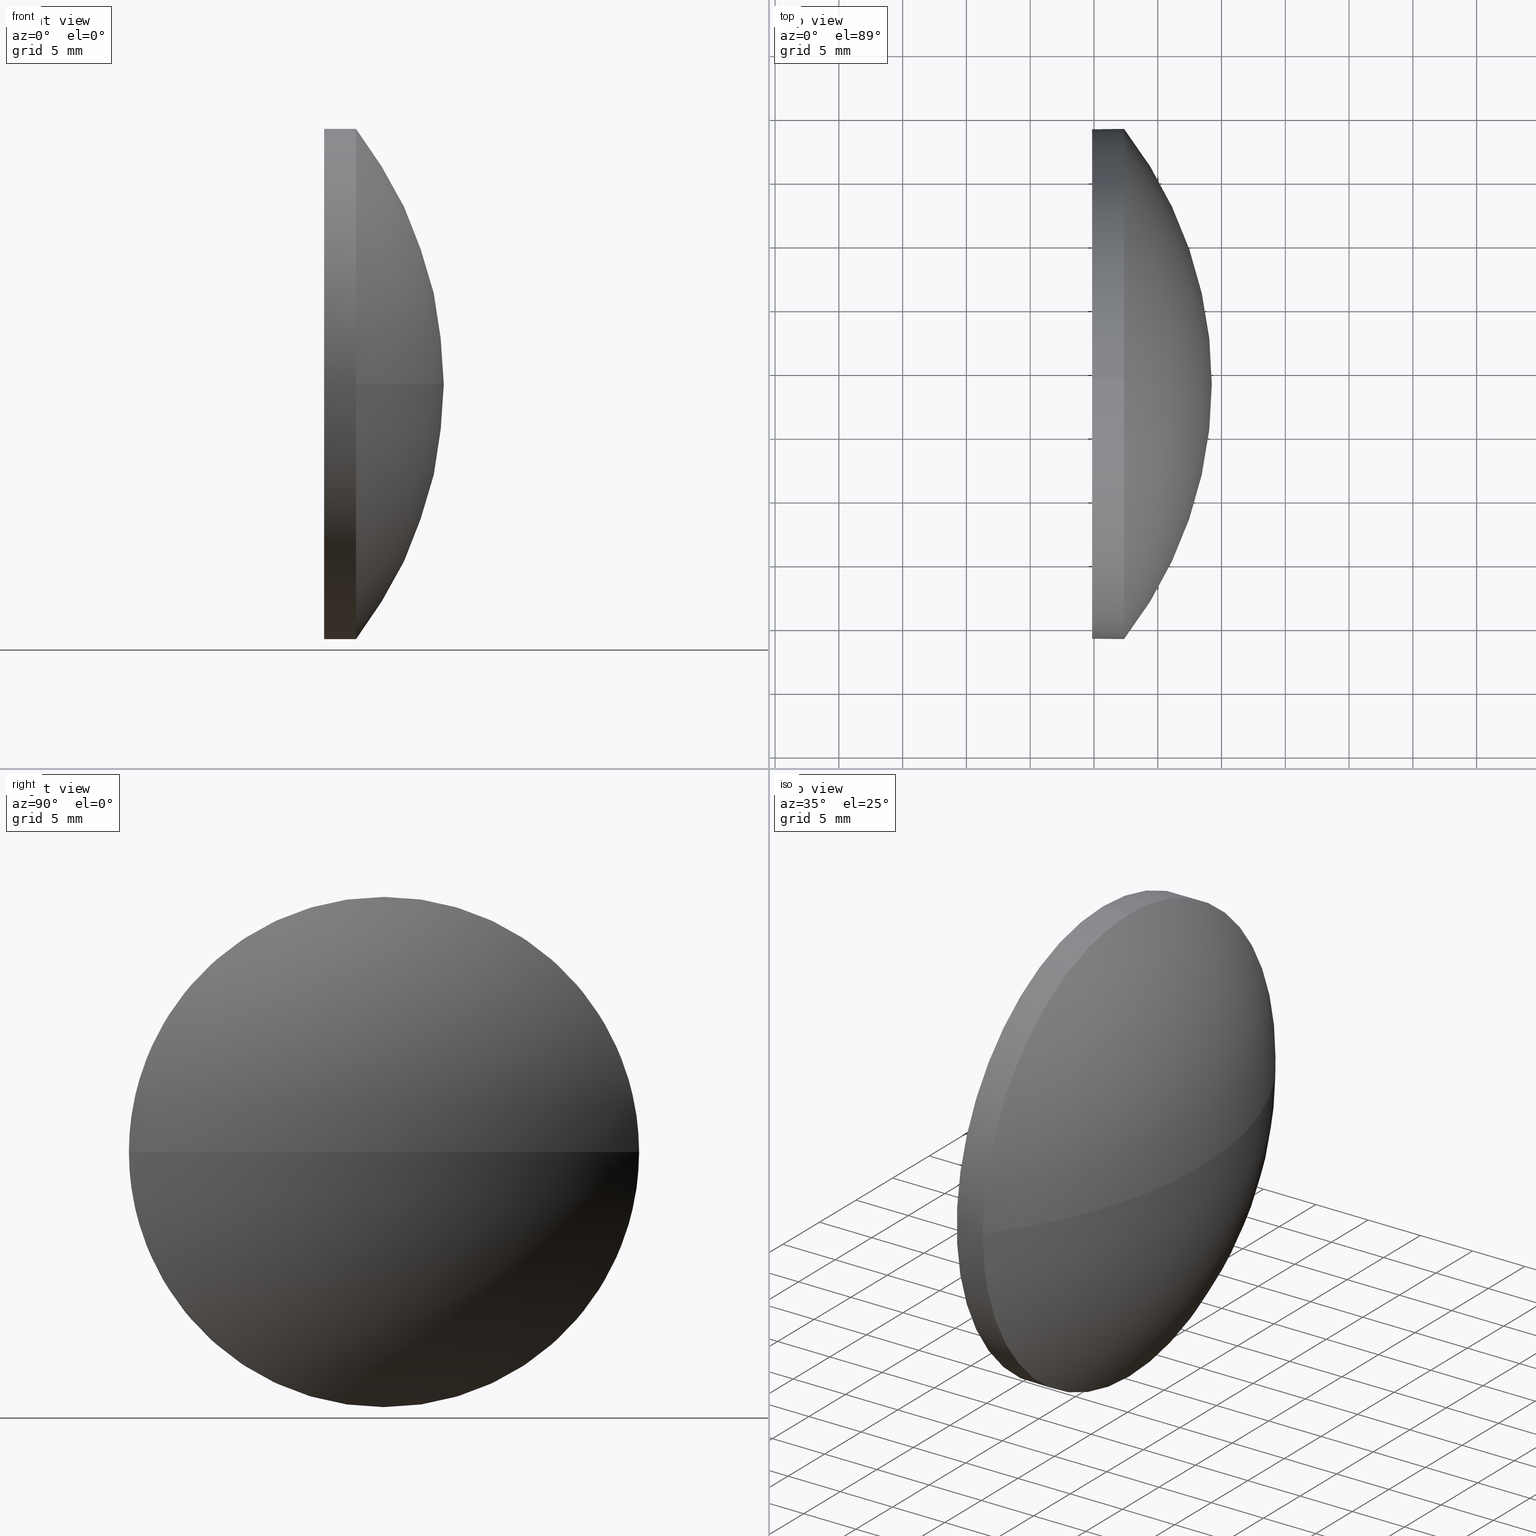
[diagram: canonical four-view strip — front | top / right | iso, engineering-drawing reading convention]
A machine part, canonical four-view strip (front | top / right | iso — engineering-drawing reading convention). The complete STEP part file that produces these views, byte-faithful:
ISO-10303-21;
HEADER;
FILE_DESCRIPTION (( 'STEP AP214' ),
    '1' );
FILE_NAME ('100142.STEP',
    '2019-05-15T06:26:00',
    ( '' ),
    ( '' ),
    'SwSTEP 2.0',
    'SolidWorks 2016',
    '' );
FILE_SCHEMA (( 'AUTOMOTIVE_DESIGN' ));
ENDSEC;

DATA;
#1 = EDGE_CURVE ( 'NONE', #185, #30, #11, .T. ) ;
#2 =( NAMED_UNIT ( * ) SI_UNIT ( $, .STERADIAN. ) SOLID_ANGLE_UNIT ( ) );
#3 = VERTEX_POINT ( 'NONE', #4 ) ;
#4 = CARTESIAN_POINT ( 'NONE',  ( 332.3594795055551000, -61.02737710045642000, 20.00000000000000400 ) ) ;
#5 = DIRECTION ( 'NONE',  ( 0.0000000000000000000, 0.0000000000000000000, 1.000000000000000000 ) ) ;
#6 =( NAMED_UNIT ( * ) PLANE_ANGLE_UNIT ( ) SI_UNIT ( $, .RADIAN. ) );
#7 = VECTOR ( 'NONE', #65, 1000.000000000000000 ) ;
#8 = ORIENTED_EDGE ( 'NONE', *, *, #1, .T. ) ;
#9 = CARTESIAN_POINT ( 'NONE',  ( 332.3594795055551000, -61.02737710045642000, 0.0000000000000000000 ) ) ;
#10 = CIRCLE ( 'NONE', #132, 20.00000000000000400 ) ;
#11 = CIRCLE ( 'NONE', #53, 32.50976744186051800 ) ;
#12 =( NAMED_UNIT ( * ) PLANE_ANGLE_UNIT ( ) SI_UNIT ( $, .RADIAN. ) );
#13 = SPHERICAL_SURFACE ( 'NONE', #71, 32.50976744186051800 ) ;
#14 = UNCERTAINTY_MEASURE_WITH_UNIT (LENGTH_MEASURE( 1.000000000000000100E-005 ), #78, 'distance_accuracy_value', 'NONE');
#15 = SPHERICAL_SURFACE ( 'NONE', #86, 32.50976744186051800 ) ;
#16 =( NAMED_UNIT ( * ) PLANE_ANGLE_UNIT ( ) SI_UNIT ( $, .RADIAN. ) );
#17 = EDGE_CURVE ( 'NONE', #117, #186, #124, .T. ) ;
#18 = FACE_OUTER_BOUND ( 'NONE', #175, .T. ) ;
#19 = DIRECTION ( 'NONE',  ( -1.000000000000000000, -0.0000000000000000000, -0.0000000000000000000 ) ) ;
#20 = MANIFOLD_SOLID_BREP ( '��ת1', #136 ) ;
#21 = CIRCLE ( 'NONE', #29, 20.00000000000000400 ) ;
#22 = ORIENTED_EDGE ( 'NONE', *, *, #113, .T. ) ;
#23 = ADVANCED_FACE ( 'NONE', ( #94 ), #13, .T. ) ;
#24 = DIRECTION ( 'NONE',  ( 0.0000000000000000000, 0.0000000000000000000, 1.000000000000000000 ) ) ;
#25 = APPLICATION_PROTOCOL_DEFINITION ( 'draft international standard', 'automotive_design', 1998, #125 ) ;
#26 = ADVANCED_FACE ( 'NONE', ( #163 ), #182, .T. ) ;
#27 = LINE ( 'NONE', #119, #7 ) ;
#28 = ORIENTED_EDGE ( 'NONE', *, *, #141, .F. ) ;
#29 = AXIS2_PLACEMENT_3D ( 'NONE', #108, #19, #66 ) ;
#30 = VERTEX_POINT ( 'NONE', #91 ) ;
#31 = CARTESIAN_POINT ( 'NONE',  ( 329.8594795055551000, -61.02737710045642000, 0.0000000000000000000 ) ) ;
#32 = EDGE_CURVE ( 'NONE', #3, #30, #10, .T. ) ;
#33 = DIRECTION ( 'NONE',  ( 0.0000000000000000000, 1.000000000000000000, 0.0000000000000000000 ) ) ;
#34 = ORIENTED_EDGE ( 'NONE', *, *, #141, .T. ) ;
#35 = AXIS2_PLACEMENT_3D ( 'NONE', #133, #50, #51 ) ;
#36 = CARTESIAN_POINT ( 'NONE',  ( 306.7297120636945900, -61.02737710045642700, 0.0000000000000000000 ) ) ;
#37 = DIRECTION ( 'NONE',  ( -1.000000000000000000, -0.0000000000000000000, -0.0000000000000000000 ) ) ;
#38 = DIRECTION ( 'NONE',  ( 0.0000000000000000000, 1.000000000000000000, 1.224646799147353000E-016 ) ) ;
#39 = ORIENTED_EDGE ( 'NONE', *, *, #88, .T. ) ;
#40 = CARTESIAN_POINT ( 'NONE',  ( 329.8594795055551000, -61.02737710045642000, 20.00000000000000400 ) ) ;
#41 = ORIENTED_EDGE ( 'NONE', *, *, #17, .T. ) ;
#42 =( GEOMETRIC_REPRESENTATION_CONTEXT ( 3 ) GLOBAL_UNCERTAINTY_ASSIGNED_CONTEXT ( ( #52 ) ) GLOBAL_UNIT_ASSIGNED_CONTEXT ( ( #76, #16, #2 ) ) REPRESENTATION_CONTEXT ( 'NONE', 'WORKASPACE' ) );
#43 = ADVANCED_FACE ( 'NONE', ( #60 ), #177, .F. ) ;
#44 = AXIS2_PLACEMENT_3D ( 'NONE', #180, #37, #80 ) ;
#45 = ORIENTED_EDGE ( 'NONE', *, *, #1, .F. ) ;
#46 = LINE ( 'NONE', #120, #174 ) ;
#47 = ORIENTED_EDGE ( 'NONE', *, *, #130, .T. ) ;
#48 = CARTESIAN_POINT ( 'NONE',  ( 306.7297120636945900, -61.02737710045642700, 0.0000000000000000000 ) ) ;
#49 = AXIS2_PLACEMENT_3D ( 'NONE', #68, #152, #57 ) ;
#50 = DIRECTION ( 'NONE',  ( -1.000000000000000000, -0.0000000000000000000, -0.0000000000000000000 ) ) ;
#51 = DIRECTION ( 'NONE',  ( 0.0000000000000000000, 0.0000000000000000000, 1.000000000000000000 ) ) ;
#52 = UNCERTAINTY_MEASURE_WITH_UNIT (LENGTH_MEASURE( 1.000000000000000100E-005 ), #76, 'distance_accuracy_value', 'NONE');
#53 = AXIS2_PLACEMENT_3D ( 'NONE', #48, #54, #144 ) ;
#54 = DIRECTION ( 'NONE',  ( -0.0000000000000000000, 0.0000000000000000000, 1.000000000000000000 ) ) ;
#55 = DIRECTION ( 'NONE',  ( -1.000000000000000000, -0.0000000000000000000, -0.0000000000000000000 ) ) ;
#56 = AXIS2_PLACEMENT_3D ( 'NONE', #165, #95, #153 ) ;
#57 = DIRECTION ( 'NONE',  ( 0.0000000000000000000, 0.0000000000000000000, -1.000000000000000000 ) ) ;
#58 = SURFACE_STYLE_FILL_AREA ( #105 ) ;
#59 = AXIS2_PLACEMENT_3D ( 'NONE', #31, #131, #90 ) ;
#60 = FACE_OUTER_BOUND ( 'NONE', #70, .T. ) ;
#61 = CIRCLE ( 'NONE', #44, 20.00000000000000400 ) ;
#62 = ORIENTED_EDGE ( 'NONE', *, *, #103, .F. ) ;
#63 = STYLED_ITEM ( 'NONE', ( #158 ), #20 ) ;
#64 = CIRCLE ( 'NONE', #170, 20.00000000000000400 ) ;
#65 = DIRECTION ( 'NONE',  ( -1.000000000000000000, -0.0000000000000000000, -0.0000000000000000000 ) ) ;
#66 = DIRECTION ( 'NONE',  ( 0.0000000000000000000, 0.0000000000000000000, 1.000000000000000000 ) ) ;
#67 = CYLINDRICAL_SURFACE ( 'NONE', #56, 20.00000000000000400 ) ;
#68 = CARTESIAN_POINT ( 'NONE',  ( 329.8594795055551000, -61.02737710045642000, 0.0000000000000000000 ) ) ;
#69 =( NAMED_UNIT ( * ) SI_UNIT ( $, .STERADIAN. ) SOLID_ANGLE_UNIT ( ) );
#70 = EDGE_LOOP ( 'NONE', ( #154, #41 ) ) ;
#71 = AXIS2_PLACEMENT_3D ( 'NONE', #176, #104, #33 ) ;
#72 = SURFACE_STYLE_USAGE ( .BOTH. , #126 ) ;
#73 = PRODUCT_DEFINITION_CONTEXT ( 'detailed design', #125, 'design' ) ;
#74 = ORIENTED_EDGE ( 'NONE', *, *, #172, .F. ) ;
#75 = EDGE_LOOP ( 'NONE', ( #47, #34, #74, #62, #162 ) ) ;
#76 =( LENGTH_UNIT ( ) NAMED_UNIT ( * ) SI_UNIT ( .MILLI., .METRE. ) );
#77 = FILL_AREA_STYLE_COLOUR ( '', #79 ) ;
#78 =( LENGTH_UNIT ( ) NAMED_UNIT ( * ) SI_UNIT ( .MILLI., .METRE. ) );
#79 = COLOUR_RGB ( '',1.000000000000000000, 1.000000000000000000, 1.000000000000000000 ) ;
#80 = DIRECTION ( 'NONE',  ( 0.0000000000000000000, 0.0000000000000000000, 1.000000000000000000 ) ) ;
#81 = ORIENTED_EDGE ( 'NONE', *, *, #160, .T. ) ;
#82 = CARTESIAN_POINT ( 'NONE',  ( 339.2394795055551000, -61.02737710045642700, 0.0000000000000000000 ) ) ;
#83 = DIRECTION ( 'NONE',  ( 0.0000000000000000000, 1.000000000000000000, 0.0000000000000000000 ) ) ;
#84 = MECHANICAL_DESIGN_GEOMETRIC_PRESENTATION_REPRESENTATION (  '', ( #63 ), #42 ) ;
#85 = ADVANCED_FACE ( 'NONE', ( #173 ), #15, .T. ) ;
#86 = AXIS2_PLACEMENT_3D ( 'NONE', #151, #135, #83 ) ;
#87 = FILL_AREA_STYLE ('',( #77 ) ) ;
#88 = EDGE_CURVE ( 'NONE', #185, #140, #129, .T. ) ;
#89 = ORIENTED_EDGE ( 'NONE', *, *, #17, .F. ) ;
#90 = DIRECTION ( 'NONE',  ( 0.0000000000000000000, 0.0000000000000000000, 1.000000000000000000 ) ) ;
#91 = CARTESIAN_POINT ( 'NONE',  ( 332.3594795055551000, -41.02737710045641300, 0.0000000000000000000 ) ) ;
#92 =( GEOMETRIC_REPRESENTATION_CONTEXT ( 3 ) GLOBAL_UNCERTAINTY_ASSIGNED_CONTEXT ( ( #14 ) ) GLOBAL_UNIT_ASSIGNED_CONTEXT ( ( #78, #6, #69 ) ) REPRESENTATION_CONTEXT ( 'NONE', 'WORKASPACE' ) );
#93 = CARTESIAN_POINT ( 'NONE',  ( 329.8594795055551000, -61.02737710045642000, -20.00000000000000400 ) ) ;
#94 = FACE_OUTER_BOUND ( 'NONE', #143, .T. ) ;
#95 = DIRECTION ( 'NONE',  ( -1.000000000000000000, -0.0000000000000000000, -0.0000000000000000000 ) ) ;
#96 = SURFACE_STYLE_FILL_AREA ( #87 ) ;
#97 =( LENGTH_UNIT ( ) NAMED_UNIT ( * ) SI_UNIT ( .MILLI., .METRE. ) );
#98 = CIRCLE ( 'NONE', #99, 20.00000000000000400 ) ;
#99 = AXIS2_PLACEMENT_3D ( 'NONE', #166, #178, #5 ) ;
#100 = VERTEX_POINT ( 'NONE', #146 ) ;
#101 = SHAPE_DEFINITION_REPRESENTATION ( #147, #114 ) ;
#102 = ORIENTED_EDGE ( 'NONE', *, *, #130, .F. ) ;
#103 = EDGE_CURVE ( 'NONE', #3, #186, #27, .T. ) ;
#104 = DIRECTION ( 'NONE',  ( -0.0000000000000000000, 0.0000000000000000000, -1.000000000000000000 ) ) ;
#105 = FILL_AREA_STYLE ('',( #116 ) ) ;
#106 = ORIENTED_EDGE ( 'NONE', *, *, #113, .F. ) ;
#107 = CARTESIAN_POINT ( 'NONE',  ( 0.0000000000000000000, 0.0000000000000000000, 0.0000000000000000000 ) ) ;
#108 = CARTESIAN_POINT ( 'NONE',  ( 332.3594795055551000, -61.02737710045642000, 0.0000000000000000000 ) ) ;
#109 = DIRECTION ( 'NONE',  ( 0.0000000000000000000, 1.224646799147353200E-016, -1.000000000000000000 ) ) ;
#110 =( NAMED_UNIT ( * ) SI_UNIT ( $, .STERADIAN. ) SOLID_ANGLE_UNIT ( ) );
#111 = PRODUCT_DEFINITION ( 'δ֪', '', #157, #73 ) ;
#112 = ORIENTED_EDGE ( 'NONE', *, *, #160, .F. ) ;
#113 = EDGE_CURVE ( 'NONE', #140, #3, #21, .T. ) ;
#114 = ADVANCED_BREP_SHAPE_REPRESENTATION ( '100142', ( #20, #159 ), #92 ) ;
#115 = STYLED_ITEM ( 'NONE', ( #142 ), #114 ) ;
#116 = FILL_AREA_STYLE_COLOUR ( '', #139 ) ;
#117 = VERTEX_POINT ( 'NONE', #93 ) ;
#118 = PRODUCT_RELATED_PRODUCT_CATEGORY ( 'part', '', ( #156 ) ) ;
#119 = CARTESIAN_POINT ( 'NONE',  ( 325.1649363249780400, -61.02737710045642000, 20.00000000000000400 ) ) ;
#120 = CARTESIAN_POINT ( 'NONE',  ( 325.1649363249780400, -61.02737710045642000, -20.00000000000000400 ) ) ;
#121 = APPLICATION_PROTOCOL_DEFINITION ( 'draft international standard', 'automotive_design', 1998, #183 ) ;
#122 = DIRECTION ( 'NONE',  ( -1.000000000000000000, -0.0000000000000000000, -0.0000000000000000000 ) ) ;
#123 = DIRECTION ( 'NONE',  ( -1.000000000000000000, -0.0000000000000000000, -0.0000000000000000000 ) ) ;
#124 = CIRCLE ( 'NONE', #59, 20.00000000000000400 ) ;
#125 = APPLICATION_CONTEXT ( 'automotive_design' ) ;
#126 = SURFACE_SIDE_STYLE ('',( #96 ) ) ;
#127 = ORIENTED_EDGE ( 'NONE', *, *, #88, .F. ) ;
#128 = PRESENTATION_LAYER_ASSIGNMENT (  '', '', ( #115 ) ) ;
#129 = CIRCLE ( 'NONE', #181, 32.50976744186051800 ) ;
#130 = EDGE_CURVE ( 'NONE', #30, #100, #64, .T. ) ;
#131 = DIRECTION ( 'NONE',  ( -1.000000000000000000, -0.0000000000000000000, -0.0000000000000000000 ) ) ;
#132 = AXIS2_PLACEMENT_3D ( 'NONE', #179, #55, #148 ) ;
#133 = CARTESIAN_POINT ( 'NONE',  ( 325.1649363249780400, -61.02737710045642000, 0.0000000000000000000 ) ) ;
#134 = UNCERTAINTY_MEASURE_WITH_UNIT (LENGTH_MEASURE( 1.000000000000000100E-005 ), #97, 'distance_accuracy_value', 'NONE');
#135 = DIRECTION ( 'NONE',  ( -0.0000000000000000000, 0.0000000000000000000, -1.000000000000000000 ) ) ;
#136 = CLOSED_SHELL ( 'NONE', ( #26, #85, #23, #168, #43 ) ) ;
#137 =( GEOMETRIC_REPRESENTATION_CONTEXT ( 3 ) GLOBAL_UNCERTAINTY_ASSIGNED_CONTEXT ( ( #134 ) ) GLOBAL_UNIT_ASSIGNED_CONTEXT ( ( #97, #12, #110 ) ) REPRESENTATION_CONTEXT ( 'NONE', 'WORKASPACE' ) );
#138 = PRESENTATION_LAYER_ASSIGNMENT (  '', '', ( #63 ) ) ;
#139 = COLOUR_RGB ( '',1.000000000000000000, 1.000000000000000000, 1.000000000000000000 ) ;
#140 = VERTEX_POINT ( 'NONE', #164 ) ;
#141 = EDGE_CURVE ( 'NONE', #100, #117, #46, .T. ) ;
#142 = PRESENTATION_STYLE_ASSIGNMENT (( #72 ) ) ;
#143 = EDGE_LOOP ( 'NONE', ( #127, #8, #150, #106 ) ) ;
#144 = DIRECTION ( 'NONE',  ( 1.000000000000000000, 0.0000000000000000000, 0.0000000000000000000 ) ) ;
#145 = SURFACE_STYLE_USAGE ( .BOTH. , #161 ) ;
#146 = CARTESIAN_POINT ( 'NONE',  ( 332.3594795055551000, -61.02737710045642000, -20.00000000000000400 ) ) ;
#147 = PRODUCT_DEFINITION_SHAPE ( 'NONE', 'NONE',  #111 ) ;
#148 = DIRECTION ( 'NONE',  ( 0.0000000000000000000, 0.0000000000000000000, 1.000000000000000000 ) ) ;
#149 = MECHANICAL_DESIGN_GEOMETRIC_PRESENTATION_REPRESENTATION (  '', ( #115 ), #137 ) ;
#150 = ORIENTED_EDGE ( 'NONE', *, *, #32, .F. ) ;
#151 = CARTESIAN_POINT ( 'NONE',  ( 306.7297120636945900, -61.02737710045642700, 0.0000000000000000000 ) ) ;
#152 = DIRECTION ( 'NONE',  ( 1.000000000000000000, 0.0000000000000000000, 0.0000000000000000000 ) ) ;
#153 = DIRECTION ( 'NONE',  ( 0.0000000000000000000, 0.0000000000000000000, 1.000000000000000000 ) ) ;
#154 = ORIENTED_EDGE ( 'NONE', *, *, #172, .T. ) ;
#155 = DIRECTION ( 'NONE',  ( 0.0000000000000000000, 0.0000000000000000000, 1.000000000000000000 ) ) ;
#156 = PRODUCT ( '100142', '100142', '', ( #184 ) ) ;
#157 = PRODUCT_DEFINITION_FORMATION_WITH_SPECIFIED_SOURCE ( '�κ�', '', #156, .NOT_KNOWN. ) ;
#158 = PRESENTATION_STYLE_ASSIGNMENT (( #145 ) ) ;
#159 = AXIS2_PLACEMENT_3D ( 'NONE', #107, #155, #169 ) ;
#160 = EDGE_CURVE ( 'NONE', #100, #140, #61, .T. ) ;
#161 = SURFACE_SIDE_STYLE ('',( #58 ) ) ;
#162 = ORIENTED_EDGE ( 'NONE', *, *, #32, .T. ) ;
#163 = FACE_OUTER_BOUND ( 'NONE', #75, .T. ) ;
#164 = CARTESIAN_POINT ( 'NONE',  ( 332.3594795055551000, -81.02737710045643400, -2.449293598294707300E-015 ) ) ;
#165 = CARTESIAN_POINT ( 'NONE',  ( 325.1649363249780400, -61.02737710045642000, 0.0000000000000000000 ) ) ;
#166 = CARTESIAN_POINT ( 'NONE',  ( 329.8594795055551000, -61.02737710045642000, 0.0000000000000000000 ) ) ;
#167 = ORIENTED_EDGE ( 'NONE', *, *, #103, .T. ) ;
#168 = ADVANCED_FACE ( 'NONE', ( #18 ), #67, .T. ) ;
#169 = DIRECTION ( 'NONE',  ( 1.000000000000000000, 0.0000000000000000000, 0.0000000000000000000 ) ) ;
#170 = AXIS2_PLACEMENT_3D ( 'NONE', #9, #123, #24 ) ;
#171 = EDGE_LOOP ( 'NONE', ( #45, #39, #112, #102 ) ) ;
#172 = EDGE_CURVE ( 'NONE', #186, #117, #98, .T. ) ;
#173 = FACE_OUTER_BOUND ( 'NONE', #171, .T. ) ;
#174 = VECTOR ( 'NONE', #122, 1000.000000000000000 ) ;
#175 = EDGE_LOOP ( 'NONE', ( #28, #81, #22, #167, #89 ) ) ;
#176 = CARTESIAN_POINT ( 'NONE',  ( 306.7297120636945900, -61.02737710045642700, 0.0000000000000000000 ) ) ;
#177 = PLANE ( 'NONE',  #49 ) ;
#178 = DIRECTION ( 'NONE',  ( -1.000000000000000000, -0.0000000000000000000, -0.0000000000000000000 ) ) ;
#179 = CARTESIAN_POINT ( 'NONE',  ( 332.3594795055551000, -61.02737710045642000, 0.0000000000000000000 ) ) ;
#180 = CARTESIAN_POINT ( 'NONE',  ( 332.3594795055551000, -61.02737710045642000, 0.0000000000000000000 ) ) ;
#181 = AXIS2_PLACEMENT_3D ( 'NONE', #36, #109, #38 ) ;
#182 = CYLINDRICAL_SURFACE ( 'NONE', #35, 20.00000000000000400 ) ;
#183 = APPLICATION_CONTEXT ( 'automotive_design' ) ;
#184 = PRODUCT_CONTEXT ( 'NONE', #183, 'mechanical' ) ;
#185 = VERTEX_POINT ( 'NONE', #82 ) ;
#186 = VERTEX_POINT ( 'NONE', #40 ) ;
ENDSEC;
END-ISO-10303-21;
